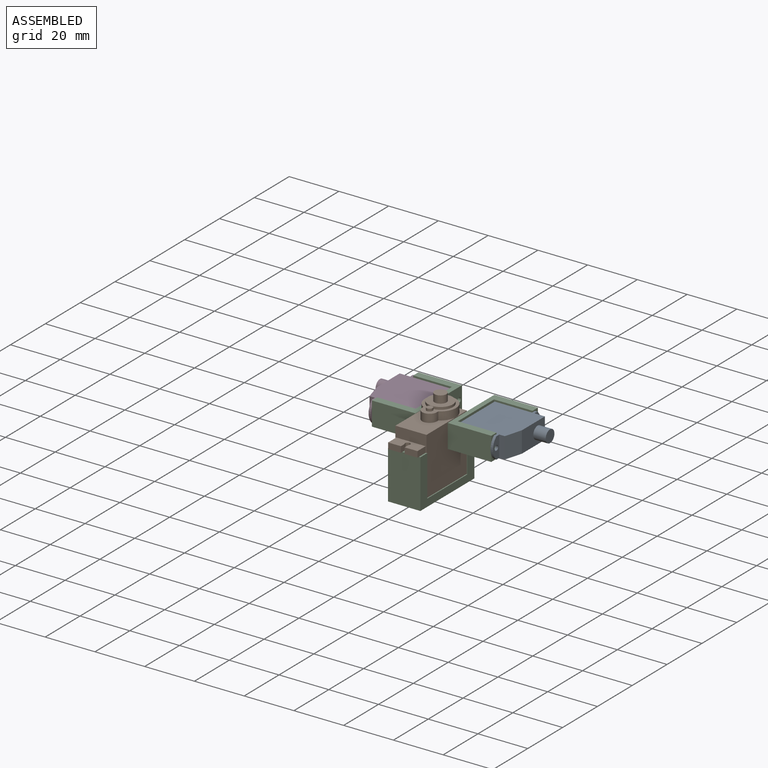
[diagram: assembled view]
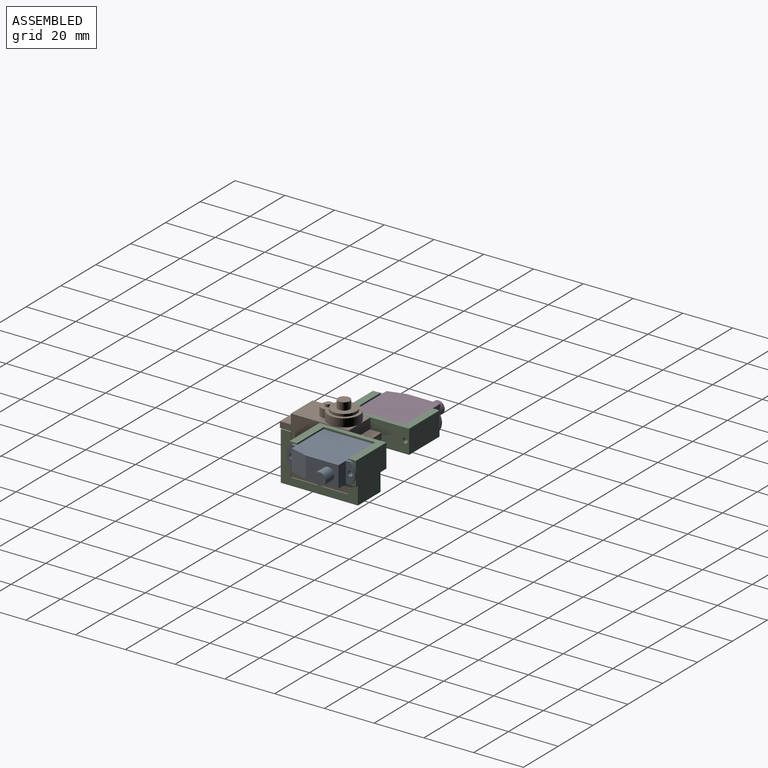
[diagram: assembled view, second angle]
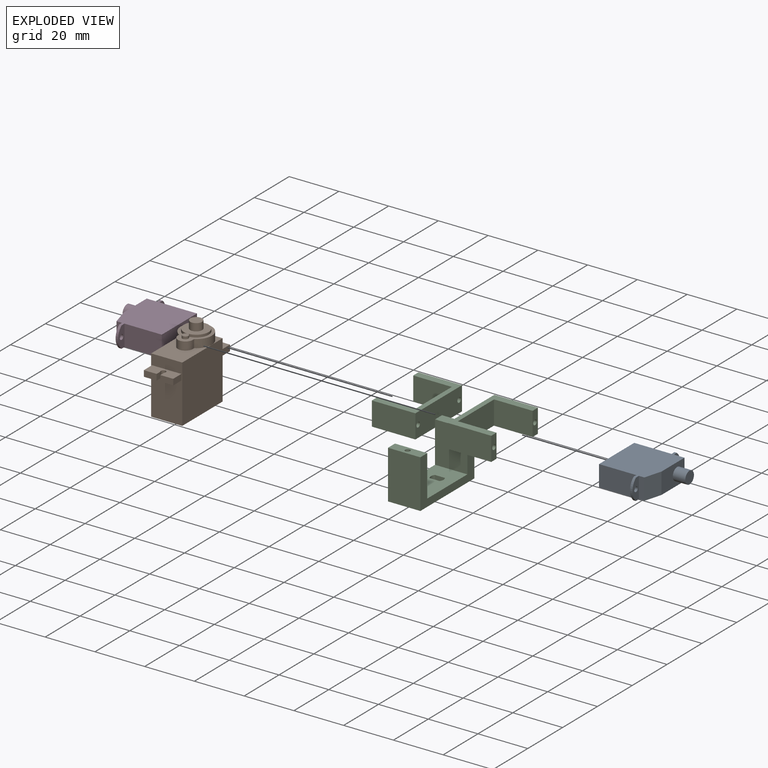
[diagram: exploded view]
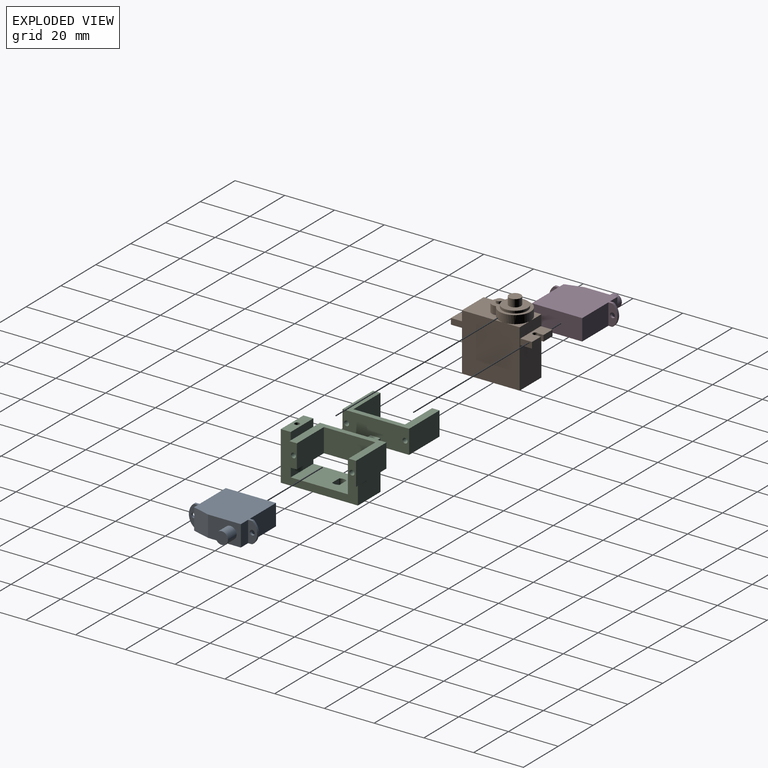
[diagram: exploded view, second angle]
ASSEMBLY  parts=4 mates=3
PART A: 19 faces, bbox 8.5x27.5x25.2 mm
  f0: plane 15x8.5mm, normal (0,1,0), area 127.5mm2, adj f2,f4,f7,f15
  f1: plane 15x8.5mm, normal (0,-1,0), area 127.5mm2, adj f2,f4,f7,f11
  f2: plane 23.5x20.2mm, normal (-1,0,0), area 404.3mm2, adj f0,f1,f3,f5,f6,f7,f8,f10
  f3: plane 8.5x2.2mm, normal (0,-1,0), area 18.7mm2, adj f2,f4,f10,f18
  f4: plane 23.5x20.2mm, normal (1,0,0), area 404.3mm2, adj f0,f1,f3,f5,f6,f7,f8,f10
  f5: plane 8.5x4.2mm, normal (0,1,0), area 35.7mm2, adj f2,f4,f6,f14
  f6: plane 13.2x8.5mm, normal (0,0,1), area 92.6mm2, adj f2,f4,f5,f17,f18
  f7: plane 20.2x8.5mm, normal (0,0,-1), area 171.7mm2, adj f0,f1,f2,f4
  f8: cylinder r=5.52mm len=8.5mm, axis (0,0,-1), area 9.7mm2, adj f2,f4,f10,f11
  f9: cylinder r=1mm len=2mm, axis (0,0,-1), area 6.3mm2, adj f10,f11
  f10: plane 8.5x3.65mm, normal (0,0,1), area 22.7mm2, adj f2,f3,f4,f8,f9
  f11: plane 8.5x3.65mm, normal (0,0,-1), area 22.7mm2, adj f1,f2,f4,f8,f9
  f12: cylinder r=5.52mm len=8.5mm, axis (0,0,-1), area 9.7mm2, adj f2,f4,f14,f15
  f13: cylinder r=1mm len=2mm, axis (0,0,-1), area 6.3mm2, adj f14,f15
  f14: plane 8.5x3.65mm, normal (0,0,1), area 22.7mm2, adj f2,f4,f5,f12,f13
  f15: plane 8.5x3.65mm, normal (0,0,-1), area 22.7mm2, adj f0,f2,f4,f12,f13
  f16: plane 5x5mm, normal (0,0,1), area 19.6mm2, adj f17
  f17: cylinder r=2.5mm len=5mm, axis (0,0,-1), area 78.5mm2, adj f6,f16
  f18: plane 8.5x7mm, normal (0,-0.27,0.96), area 61.9mm2, adj f2,f3,f4,f6
PART B: 37 faces, bbox 12.5x32.6x30.3 mm
  f0: plane 23x12.5mm, normal (0,-1,0), area 259.2mm2, adj f12,f13,f16,f18,f28,f34,f35,f36
  f1: cylinder r=6.25mm len=12.5mm, axis (0,0,-1), area 108.9mm2, adj f8,f10,f11,f15,f17,f18
  f2: cylinder r=2.4mm len=4.8mm, axis (0,0,-1), area 45.2mm2, adj f3,f5
  f3: plane 4.8x4.8mm, normal (0,0,1), area 18.1mm2, adj f2
  f4: cylinder r=5mm len=10mm, axis (0,0,-1), area 31.4mm2, adj f5,f11
  f5: plane 10x10mm, normal (0,0,1), area 60.4mm2, adj f2,f4
  f6: cylinder r=1.24mm len=2.48mm, axis (0,0,-1), area 7.8mm2, adj f7,f11
  f7: plane 2.48x2.48mm, normal (0,0,1), area 4.8mm2, adj f6
  f8: plane 3.3x0.77mm, normal (-1,0,0), area 2.5mm2, adj f1,f9,f11,f18
  f9: cylinder r=3mm len=6mm, axis (0,0,-1), area 31.1mm2, adj f8,f10,f11,f18
  f10: plane 3.3x0.77mm, normal (1,0,0), area 2.5mm2, adj f1,f9,f11,f18
  f11: plane 15.5x12.5mm, normal (0,0,1), area 55mm2, adj f1,f4,f6,f8,f9,f10
  f12: plane 23.2x12.5mm, normal (0,0,-1), area 290mm2, adj f0,f13,f14,f16
  f13: plane 23.2x23mm, normal (1,0,0), area 533.6mm2, adj f0,f12,f14,f15,f18
  f14: plane 23x12.5mm, normal (0,1,0), area 259.2mm2, adj f12,f13,f15,f16,f17,f19,f20,f26
  f15: plane 6.25x6.25mm, normal (0,0,1), area 8.4mm2, adj f1,f13,f14
  f16: plane 23.2x23mm, normal (-1,0,0), area 533.6mm2, adj f0,f12,f14,f17,f18
  f17: plane 6.25x6.25mm, normal (0,0,1), area 8.4mm2, adj f1,f14,f16
  f18: plane 16.95x12.5mm, normal (0,0,1), area 134.9mm2, adj f0,f1,f8,f9,f10,f13,f16
  f19: plane 4.7x2.4mm, normal (-1,0,0), area 11.3mm2, adj f14,f25,f26,f27
  f20: plane 4.7x2.4mm, normal (1,0,0), area 11.3mm2, adj f14,f21,f26,f27
  f21: plane 5.15x2.4mm, normal (0,1,0), area 12.4mm2, adj f20,f22,f26,f27
  f22: plane 2.4x2.14mm, normal (-1,0,0), area 5.1mm2, adj f21,f23,f26,f27
  f23: cylinder r=1mm len=2.4mm, axis (0,0,-1), area 11mm2, adj f22,f24,f26,f27
  f24: plane 2.4x2.14mm, normal (1,0,0), area 5.1mm2, adj f23,f25,f26,f27
  f25: plane 5.15x2.4mm, normal (0,1,0), area 12.4mm2, adj f19,f24,f26,f27
  f26: plane 11.8x4.7mm, normal (0,0,1), area 49.5mm2, adj f14,f19,f20,f21,f22,f23,f24,f25
  f27: plane 11.8x4.7mm, normal (0,0,-1), area 49.5mm2, adj f14,f19,f20,f21,f22,f23,f24,f25
  f28: plane 4.7x2.4mm, normal (-1,0,0), area 11.3mm2, adj f0,f29,f35,f36
  f29: plane 5.15x2.4mm, normal (0,-1,0), area 12.4mm2, adj f28,f30,f35,f36
  f30: plane 2.4x2.14mm, normal (1,0,0), area 5.1mm2, adj f29,f31,f35,f36
  f31: cylinder r=1mm len=2.4mm, axis (0,0,-1), area 11mm2, adj f30,f32,f35,f36
  f32: plane 2.4x2.14mm, normal (-1,0,0), area 5.1mm2, adj f31,f33,f35,f36
  f33: plane 5.15x2.4mm, normal (0,-1,0), area 12.4mm2, adj f32,f34,f35,f36
  f34: plane 4.7x2.4mm, normal (1,0,0), area 11.3mm2, adj f0,f33,f35,f36
  f35: plane 11.8x4.7mm, normal (0,0,1), area 49.5mm2, adj f0,f28,f29,f30,f31,f32,f33,f34
  f36: plane 11.8x4.7mm, normal (0,0,-1), area 49.5mm2, adj f0,f28,f29,f30,f31,f32,f33,f34
PART C: 40 faces, bbox 48x42.5x26 mm
  f0: plane 31x19.5mm, normal (-1,0,0), area 213mm2, adj f6,f7,f8,f10,f12,f13,f14,f25
  f1: plane 4x3mm, normal (0,-1,0), area 12mm2, adj f2,f4,f6,f7
  f2: cylinder r=2.5mm len=3mm, axis (0,0,1), area 9.7mm2, adj f1,f3,f6,f7
  f3: plane 4x3mm, normal (0,1,0), area 12mm2, adj f2,f4,f6,f7
  f4: cylinder r=2.5mm len=3mm, axis (0,0,1), area 9.7mm2, adj f1,f3,f6,f7
  f5: plane 31x19.5mm, normal (1,0,0), area 213mm2, adj f6,f7,f8,f10,f12,f13,f14,f37
  f6: plane 31x13mm, normal (0,0,-1), area 382.7mm2, adj f0,f1,f2,f3,f4,f5,f10,f11
  f7: plane 23x13mm, normal (0,0,1), area 285mm2, adj f0,f1,f2,f3,f4,f5,f8,f14
  f8: plane 16.5x13mm, normal (0,-1,0), area 214.5mm2, adj f0,f5,f7,f9,f16,f35
  f9: plane 13x4mm, normal (0,0,1), area 48.9mm2, adj f8,f10,f11,f16,f35
  f10: plane 19.5x13mm, normal (0,1,0), area 253.5mm2, adj f0,f5,f6,f9,f16,f35
  f11: cylinder r=1mm len=19.5mm, axis (0,0,1), area 122.5mm2, adj f6,f9
  f12: plane 13x4mm, normal (0,0,1), area 48.9mm2, adj f0,f5,f13,f14,f15
  f13: plane 19.5x13mm, normal (0,-1,0), area 253.5mm2, adj f0,f5,f6,f12
  f14: plane 16.5x13mm, normal (0,1,0), area 214.5mm2, adj f0,f5,f7,f12
  f15: cylinder r=1mm len=19.5mm, axis (0,0,1), area 122.5mm2, adj f6,f12
  f16: plane 26.75x9.5mm, normal (1,0,0), area 235.8mm2, adj f8,f9,f10,f17,f18,f24,f25,f26
  f17: plane 17.5x9.5mm, normal (0,-1,0), area 166.2mm2, adj f16,f23,f24,f25
  f18: plane 17.5x9.5mm, normal (0,1,0), area 166.2mm2, adj f16,f19,f24,f25
  f19: plane 9.5x3mm, normal (-1,0,0), area 25.4mm2, adj f18,f20,f24,f25,f27
  f20: plane 15.5x9.5mm, normal (0,-1,0), area 147.2mm2, adj f19,f21,f24,f25
  f21: plane 20.75x9.5mm, normal (-1,0,0), area 197.1mm2, adj f20,f22,f24,f25
  f22: plane 15.5x9.5mm, normal (0,1,0), area 147.2mm2, adj f21,f23,f24,f25
  f23: plane 9.5x3mm, normal (-1,0,0), area 25.4mm2, adj f17,f22,f24,f25,f26
  f24: plane 26.75x17.5mm, normal (0,0,1), area 146.5mm2, adj f16,f17,f18,f19,f20,f21,f22,f23
  f25: plane 26.75x17.5mm, normal (0,0,-1), area 146.5mm2, adj f0,f16,f17,f18,f19,f20,f21,f22
  f26: cylinder r=1mm len=17.5mm, axis (-1,0,0), area 110mm2, adj f16,f23
  f27: cylinder r=1mm len=17.5mm, axis (-1,0,0), area 110mm2, adj f16,f19
  f28: plane 17.5x9.5mm, normal (0,-1,0), area 166.2mm2, adj f29,f35,f36,f37
  f29: plane 9.5x3mm, normal (1,0,0), area 25.4mm2, adj f28,f30,f36,f37,f38
  f30: plane 15.5x9.5mm, normal (0,1,0), area 147.2mm2, adj f29,f31,f36,f37
  f31: plane 20.75x9.5mm, normal (1,0,0), area 197.1mm2, adj f30,f32,f36,f37
  f32: plane 15.5x9.5mm, normal (0,-1,0), area 147.2mm2, adj f31,f33,f36,f37
  f33: plane 9.5x3mm, normal (1,0,0), area 25.4mm2, adj f32,f34,f36,f37,f39
  f34: plane 17.5x9.5mm, normal (0,1,0), area 166.2mm2, adj f33,f35,f36,f37
  f35: plane 26.75x9.5mm, normal (-1,0,0), area 235.8mm2, adj f8,f9,f10,f28,f34,f36,f37,f38
  f36: plane 26.75x17.5mm, normal (0,0,1), area 146.5mm2, adj f28,f29,f30,f31,f32,f33,f34,f35
  f37: plane 26.75x17.5mm, normal (0,0,-1), area 146.5mm2, adj f5,f28,f29,f30,f31,f32,f33,f34
  f38: cylinder r=1mm len=17.5mm, axis (1,0,0), area 110mm2, adj f29,f35
  f39: cylinder r=1mm len=17.5mm, axis (1,0,0), area 110mm2, adj f33,f35
PART D: same geometry as A
PLACE A rot(axis=(0,1,0),90deg) t=(24,23.92,1.75)mm
PLACE B t=(0,9.85,-16.4)mm
PLACE C at identity fixed
PLACE D rot(axis=(0,-1,0),90deg) t=(-24,23.92,1.75)mm
MATE fastened A.f11 <-> C.f26  axis (-1,0,0) through (24,6.35,1.75)mm
MATE fastened D.f11 <-> C.f26  axis (1,0,0) through (-24,6.35,1.75)mm
MATE fastened B.f23 <-> C.f11  axis (0,0,-1) through (0,18,0)mm
